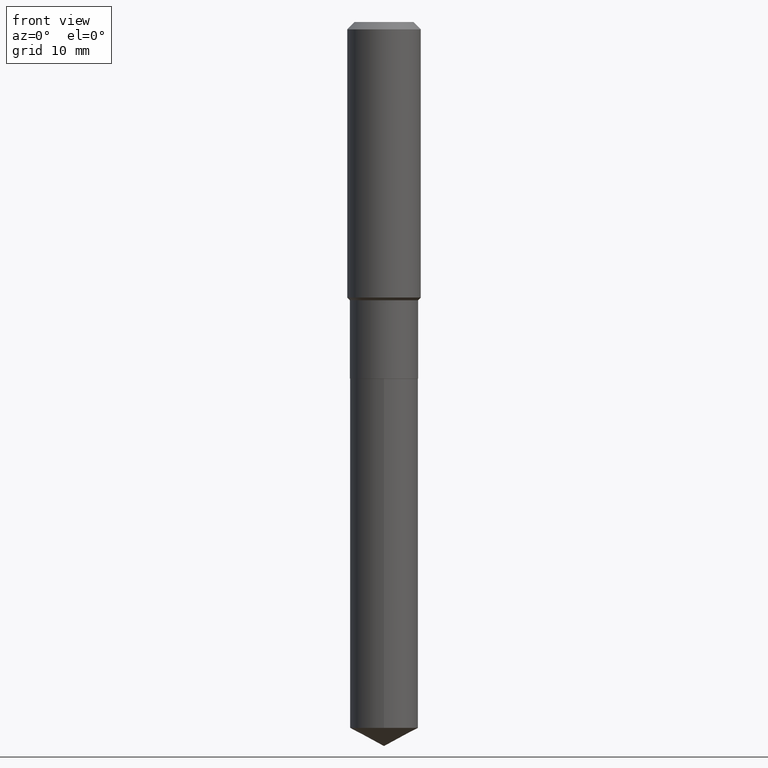
[diagram: clean part render]
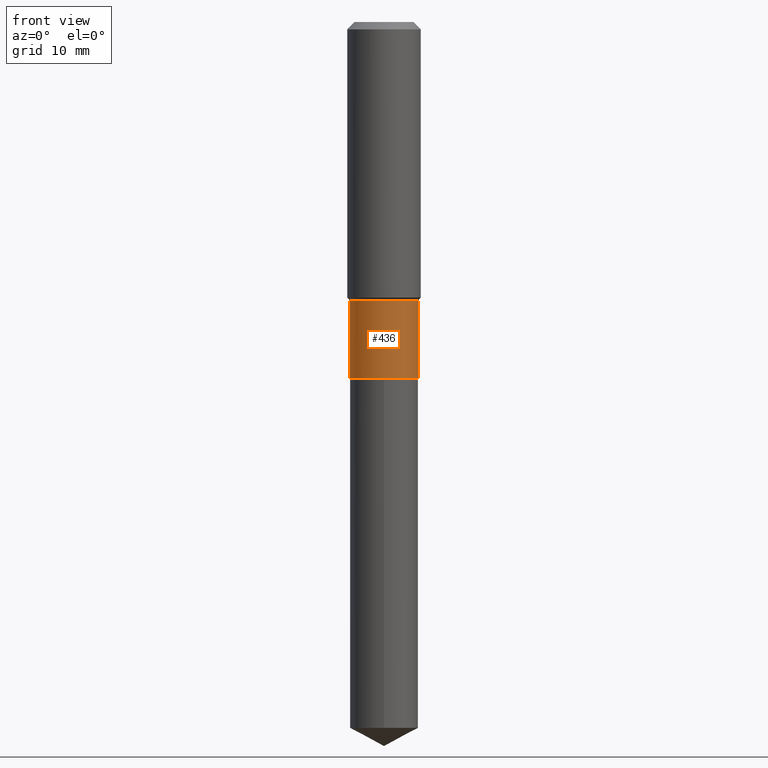
[diagram: same view with one face highlighted and labeled with its STEP entity id]
A machine part, front view. The second image highlights one B-rep face of the part: STEP entity #436.
In plain terms, the highlighted cylindrical surface (edge-blend (fillet) strip) has radius 5.5562 mm, axis along (-0, 0, 1).
Its self-contained STEP definition (entity closure, byte-faithful):
#6 = CIRCLE ( 'NONE', #237, 0.2187499999999999167 ) ;
#10 = DIRECTION ( 'NONE',  ( 1.000000000000000000, -6.982962677686262766E-15, 0.000000000000000000 ) ) ;
#35 = FACE_OUTER_BOUND ( 'NONE', #274, .T. ) ;
#36 = EDGE_CURVE ( 'NONE', #210, #397, #433, .T. ) ;
#37 = CARTESIAN_POINT ( 'NONE',  ( 4.366140006562942909E-29, -6.233690782370552646E-15, -1.785400000000000098 ) ) ;
#44 = CARTESIAN_POINT ( 'NONE',  ( 0.2187500000000000000, -9.516032389016987507E-15, -2.288000000000000256 ) ) ;
#50 = ORIENTED_EDGE ( 'NONE', *, *, #36, .T. ) ;
#57 = ORIENTED_EDGE ( 'NONE', *, *, #226, .F. ) ;
#78 = DIRECTION ( 'NONE',  ( 1.000000000000000000, -6.982962677686265922E-15, 0.000000000000000000 ) ) ;
#79 = ORIENTED_EDGE ( 'NONE', *, *, #333, .T. ) ;
#117 = CYLINDRICAL_SURFACE ( 'NONE', #398, 0.2187499999999999445 ) ;
#118 = DIRECTION ( 'NONE',  ( -2.445468806185136597E-29, 3.491481338843145583E-15, 1.000000000000000000 ) ) ;
#122 = CARTESIAN_POINT ( 'NONE',  ( -0.2187500000000000000, -5.556787808346616681E-15, -2.288000000000000256 ) ) ;
#132 = ORIENTED_EDGE ( 'NONE', *, *, #232, .F. ) ;
#149 = CARTESIAN_POINT ( 'NONE',  ( 0.2187499999999999167, -7.761213868114422700E-15, -1.785400000000000098 ) ) ;
#181 = DIRECTION ( 'NONE',  ( -2.445468806185136877E-29, 3.491481338843145188E-15, 1.000000000000000000 ) ) ;
#210 = VERTEX_POINT ( 'NONE', #44 ) ;
#226 = EDGE_CURVE ( 'NONE', #275, #397, #6, .T. ) ;
#227 = DIRECTION ( 'NONE',  ( -2.445468806185136877E-29, 3.491481338843145188E-15, 1.000000000000000000 ) ) ;
#228 = DIRECTION ( 'NONE',  ( -2.445468806185136597E-29, 3.491481338843145583E-15, 1.000000000000000000 ) ) ;
#232 = EDGE_CURVE ( 'NONE', #422, #275, #416, .T. ) ;
#233 = CARTESIAN_POINT ( 'NONE',  ( -0.2187499999999999445, 1.554312234475218762E-15, -1.076017050993260482E-29 ) ) ;
#237 = AXIS2_PLACEMENT_3D ( 'NONE', #37, #118, #78 ) ;
#246 = VECTOR ( 'NONE', #227, 39.37007874015748143 ) ;
#273 = AXIS2_PLACEMENT_3D ( 'NONE', #277, #388, #10 ) ;
#274 = EDGE_LOOP ( 'NONE', ( #132, #79, #50, #57 ) ) ;
#275 = VERTEX_POINT ( 'NONE', #304 ) ;
#277 = CARTESIAN_POINT ( 'NONE',  ( 5.595232628551593439E-29, -7.988509303273117453E-15, -2.288000000000000256 ) ) ;
#288 = CIRCLE ( 'NONE', #273, 0.2187500000000000000 ) ;
#300 = DIRECTION ( 'NONE',  ( 1.000000000000000000, -6.982962677686266711E-15, 4.876176775795935232E-29 ) ) ;
#304 = CARTESIAN_POINT ( 'NONE',  ( -0.2187499999999999167, -5.556787808346616681E-15, -1.785400000000000098 ) ) ;
#322 = CARTESIAN_POINT ( 'NONE',  ( 0.2187499999999999445, -1.527523085743870449E-15, 1.066663669705360604E-29 ) ) ;
#333 = EDGE_CURVE ( 'NONE', #422, #210, #288, .T. ) ;
#388 = DIRECTION ( 'NONE',  ( -2.445468806185136597E-29, 3.491481338843145583E-15, 1.000000000000000000 ) ) ;
#397 = VERTEX_POINT ( 'NONE', #149 ) ;
#398 = AXIS2_PLACEMENT_3D ( 'NONE', #485, #228, #300 ) ;
#403 = VECTOR ( 'NONE', #181, 39.37007874015748143 ) ;
#416 = LINE ( 'NONE', #233, #246 ) ;
#422 = VERTEX_POINT ( 'NONE', #122 ) ;
#433 = LINE ( 'NONE', #322, #403 ) ;
#436 = ADVANCED_FACE ( 'NONE', ( #35 ), #117, .T. ) ;
#485 = CARTESIAN_POINT ( 'NONE',  ( 0.000000000000000000, 0.000000000000000000, 0.000000000000000000 ) ) ;